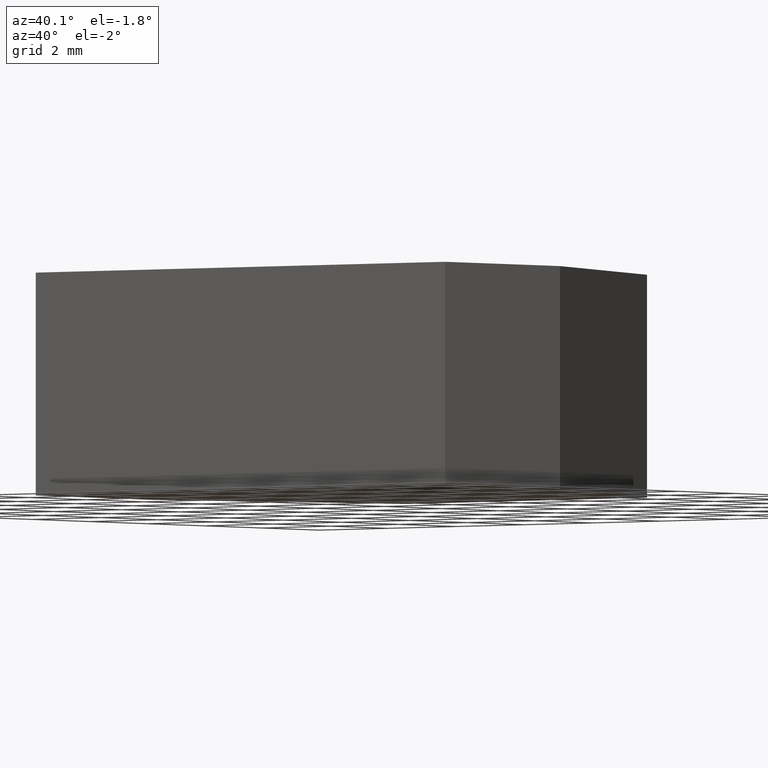
[diagram: clean part render]
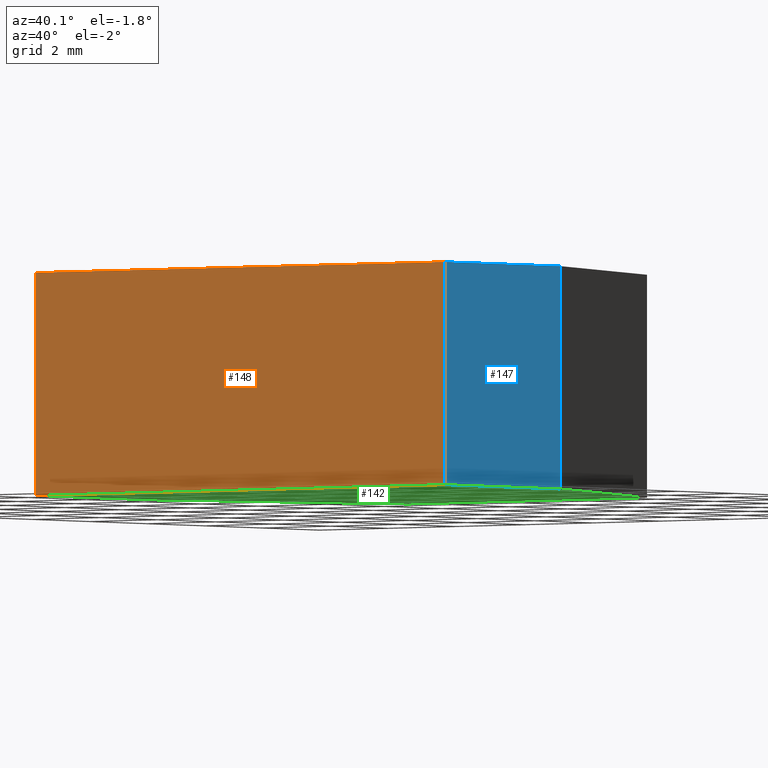
[diagram: same view with three faces highlighted in distinct colors, each labeled with its STEP entity id]
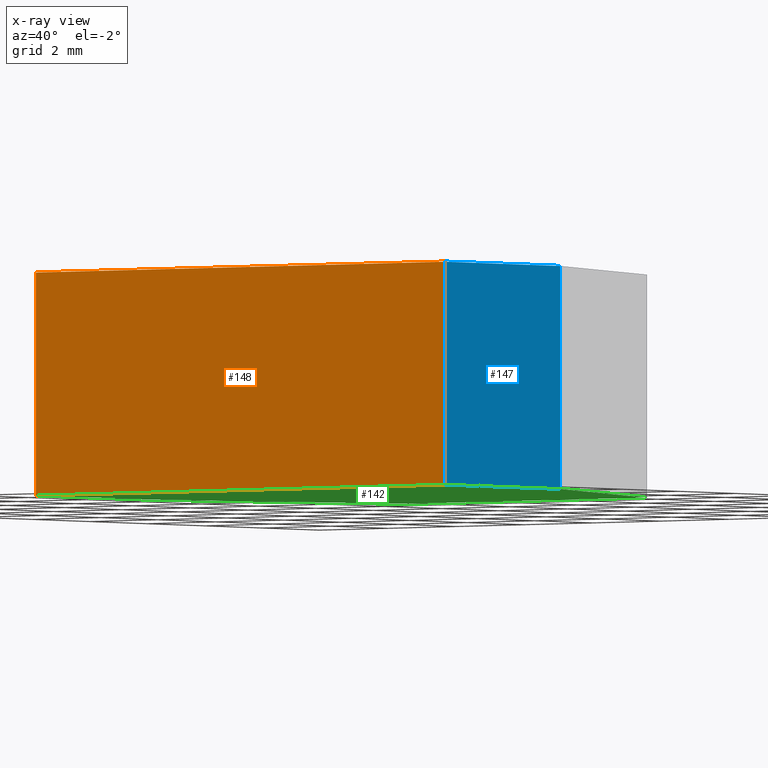
[diagram: x-ray of the same camera — body ghosted, the three highlighted faces saturated]
A machine part, auxiliary view with three faces highlighted in distinct colors.
The next image is the same camera in x-ray (body ghosted, the three faces saturated) — at least one of them is partly hidden behind the body in this view.
Their STEP definitions:

[orange] entity #148 — the highlighted planar face has unit normal (0, -1, 0).
#22=FACE_OUTER_BOUND('',#30,.T.);
#30=EDGE_LOOP('',(#124,#125,#126,#127));
#33=LINE('',#223,#51);
#40=LINE('',#236,#58);
#48=LINE('',#252,#66);
#49=LINE('',#254,#67);
#51=VECTOR('',#186,10.);
#58=VECTOR('',#195,10.);
#66=VECTOR('',#211,10.);
#67=VECTOR('',#214,10.);
#68=VERTEX_POINT('',#219);
#70=VERTEX_POINT('',#222);
#74=VERTEX_POINT('',#232);
#79=VERTEX_POINT('',#250);
#81=EDGE_CURVE('',#70,#68,#33,.T.);
#88=EDGE_CURVE('',#74,#70,#40,.T.);
#96=EDGE_CURVE('',#68,#79,#48,.T.);
#97=EDGE_CURVE('',#79,#74,#49,.T.);
#124=ORIENTED_EDGE('',*,*,#97,.T.);
#125=ORIENTED_EDGE('',*,*,#88,.T.);
#126=ORIENTED_EDGE('',*,*,#81,.T.);
#127=ORIENTED_EDGE('',*,*,#96,.T.);
#140=PLANE('',#179);
#148=ADVANCED_FACE('',(#22),#140,.T.);
#179=AXIS2_PLACEMENT_3D('',#253,#212,#213);
#186=DIRECTION('',(1.,0.,0.));
#195=DIRECTION('',(0.,0.,-1.));
#211=DIRECTION('',(0.,0.,1.));
#212=DIRECTION('center_axis',(0.,-1.,0.));
#213=DIRECTION('ref_axis',(0.,0.,-1.));
#214=DIRECTION('',(-1.,0.,0.));
#219=CARTESIAN_POINT('',(6.,-5.,-2.5));
#222=CARTESIAN_POINT('',(-6.,-5.,-2.5));
#223=CARTESIAN_POINT('',(6.,-5.,-2.5));
#232=CARTESIAN_POINT('',(-6.,-5.,2.5));
#236=CARTESIAN_POINT('',(-6.,-5.,0.));
#250=CARTESIAN_POINT('',(6.,-5.,2.5));
#252=CARTESIAN_POINT('',(6.,-5.,0.));
#253=CARTESIAN_POINT('Origin',(6.,-5.,0.));
#254=CARTESIAN_POINT('',(6.,-5.,2.5));

[blue] entity #147 — the highlighted planar face has unit normal (1, -0, 0).
#21=FACE_OUTER_BOUND('',#29,.T.);
#29=EDGE_LOOP('',(#120,#121,#122,#123));
#32=LINE('',#221,#50);
#46=LINE('',#248,#64);
#47=LINE('',#251,#65);
#48=LINE('',#252,#66);
#50=VECTOR('',#185,10.);
#64=VECTOR('',#207,10.);
#65=VECTOR('',#210,10.);
#66=VECTOR('',#211,10.);
#68=VERTEX_POINT('',#219);
#69=VERTEX_POINT('',#220);
#78=VERTEX_POINT('',#246);
#79=VERTEX_POINT('',#250);
#80=EDGE_CURVE('',#68,#69,#32,.T.);
#94=EDGE_CURVE('',#78,#69,#46,.T.);
#95=EDGE_CURVE('',#78,#79,#47,.T.);
#96=EDGE_CURVE('',#68,#79,#48,.T.);
#120=ORIENTED_EDGE('',*,*,#95,.T.);
#121=ORIENTED_EDGE('',*,*,#96,.F.);
#122=ORIENTED_EDGE('',*,*,#80,.T.);
#123=ORIENTED_EDGE('',*,*,#94,.F.);
#139=PLANE('',#178);
#147=ADVANCED_FACE('',(#21),#139,.T.);
#178=AXIS2_PLACEMENT_3D('',#249,#208,#209);
#185=DIRECTION('',(2.77555756156289E-16,1.,0.));
#207=DIRECTION('',(0.,0.,-1.));
#208=DIRECTION('center_axis',(1.,-2.77555756156289E-16,0.));
#209=DIRECTION('ref_axis',(0.,0.,-1.));
#210=DIRECTION('',(-2.77555756156289E-16,-1.,0.));
#211=DIRECTION('',(0.,0.,1.));
#219=CARTESIAN_POINT('',(6.,-5.,-2.5));
#220=CARTESIAN_POINT('',(6.,-1.,-2.5));
#221=CARTESIAN_POINT('',(6.,-1.,-2.5));
#246=CARTESIAN_POINT('',(6.,-1.,2.5));
#248=CARTESIAN_POINT('',(6.,-1.,0.));
#249=CARTESIAN_POINT('Origin',(6.,-1.,0.));
#250=CARTESIAN_POINT('',(6.,-5.,2.5));
#251=CARTESIAN_POINT('',(6.,-1.,2.5));
#252=CARTESIAN_POINT('',(6.,-5.,0.));

[green] entity #142 — the highlighted planar face has unit normal (0, 0, 1).
#16=FACE_OUTER_BOUND('',#24,.T.);
#24=EDGE_LOOP('',(#98,#99,#100,#101,#102,#103));
#32=LINE('',#221,#50);
#33=LINE('',#223,#51);
#34=LINE('',#225,#52);
#35=LINE('',#227,#53);
#36=LINE('',#229,#54);
#37=LINE('',#230,#55);
#50=VECTOR('',#185,10.);
#51=VECTOR('',#186,10.);
#52=VECTOR('',#187,10.);
#53=VECTOR('',#188,10.);
#54=VECTOR('',#189,10.);
#55=VECTOR('',#190,10.);
#68=VERTEX_POINT('',#219);
#69=VERTEX_POINT('',#220);
#70=VERTEX_POINT('',#222);
#71=VERTEX_POINT('',#224);
#72=VERTEX_POINT('',#226);
#73=VERTEX_POINT('',#228);
#80=EDGE_CURVE('',#68,#69,#32,.T.);
#81=EDGE_CURVE('',#70,#68,#33,.T.);
#82=EDGE_CURVE('',#71,#70,#34,.T.);
#83=EDGE_CURVE('',#72,#71,#35,.T.);
#84=EDGE_CURVE('',#73,#72,#36,.T.);
#85=EDGE_CURVE('',#69,#73,#37,.T.);
#98=ORIENTED_EDGE('',*,*,#80,.F.);
#99=ORIENTED_EDGE('',*,*,#81,.F.);
#100=ORIENTED_EDGE('',*,*,#82,.F.);
#101=ORIENTED_EDGE('',*,*,#83,.F.);
#102=ORIENTED_EDGE('',*,*,#84,.F.);
#103=ORIENTED_EDGE('',*,*,#85,.F.);
#134=PLANE('',#173);
#142=ADVANCED_FACE('',(#16),#134,.F.);
#173=AXIS2_PLACEMENT_3D('',#218,#183,#184);
#183=DIRECTION('center_axis',(0.,0.,1.));
#184=DIRECTION('ref_axis',(1.,0.,0.));
#185=DIRECTION('',(2.77555756156289E-16,1.,0.));
#186=DIRECTION('',(1.,0.,0.));
#187=DIRECTION('',(2.77555756156289E-16,-1.,0.));
#188=DIRECTION('',(-0.384615384615385,-0.923076923076923,0.));
#189=DIRECTION('',(-1.,0.,0.));
#190=DIRECTION('',(-0.384615384615385,0.923076923076923,0.));
#218=CARTESIAN_POINT('Origin',(-4.16333634234434E-16,-0.575,-2.5));
#219=CARTESIAN_POINT('',(6.,-5.,-2.5));
#220=CARTESIAN_POINT('',(6.,-1.,-2.5));
#221=CARTESIAN_POINT('',(6.,-1.,-2.5));
#222=CARTESIAN_POINT('',(-6.,-5.,-2.5));
#223=CARTESIAN_POINT('',(6.,-5.,-2.5));
#224=CARTESIAN_POINT('',(-6.,-1.,-2.5));
#225=CARTESIAN_POINT('',(-6.,-5.,-2.5));
#226=CARTESIAN_POINT('',(-3.5,5.,-2.5));
#227=CARTESIAN_POINT('',(-6.,-1.,-2.5));
#228=CARTESIAN_POINT('',(3.5,5.,-2.5));
#229=CARTESIAN_POINT('',(-3.5,5.,-2.5));
#230=CARTESIAN_POINT('',(3.5,5.,-2.5));